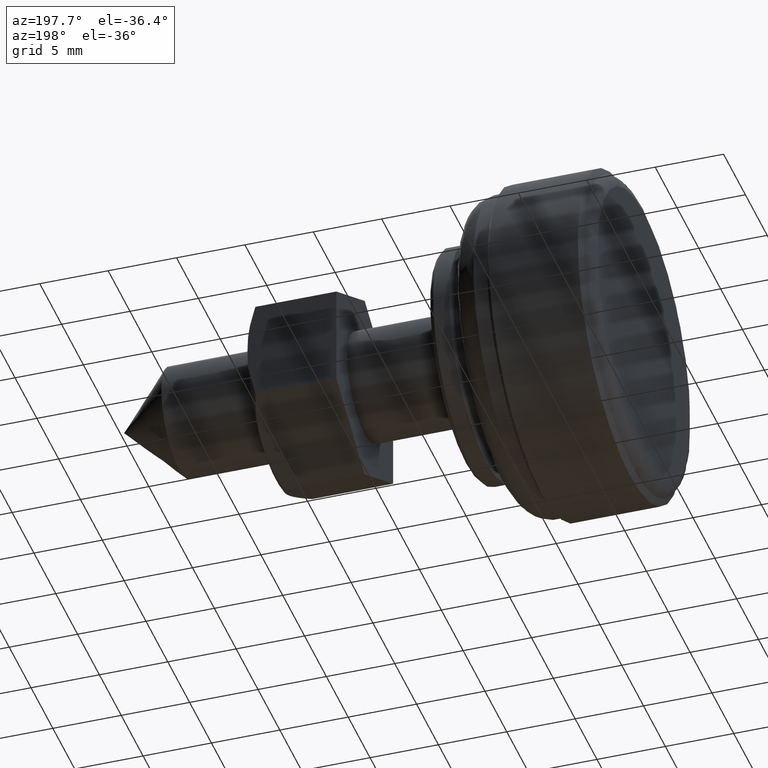
[diagram: clean part render]
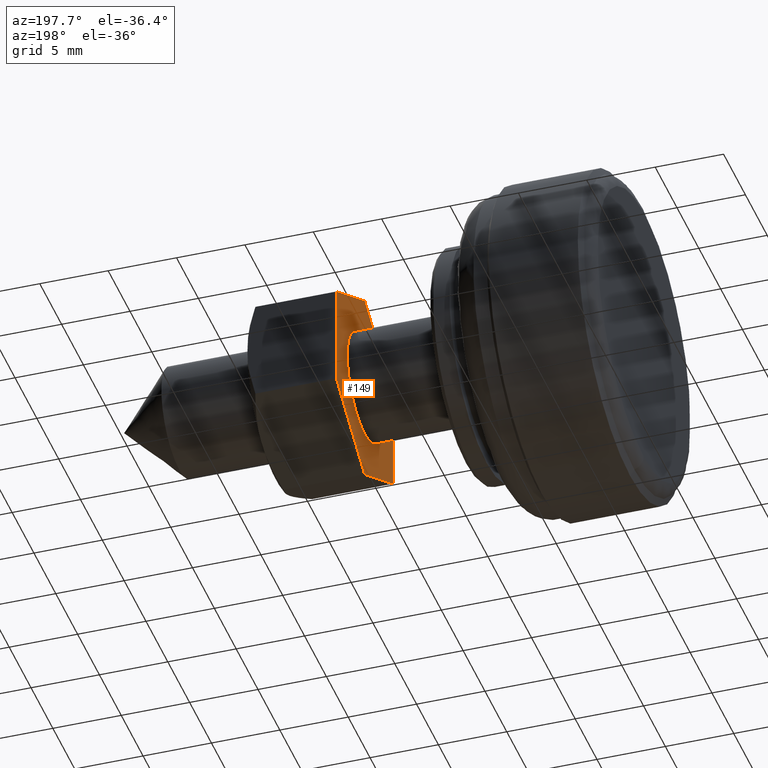
[diagram: same view with one face highlighted and labeled with its STEP entity id]
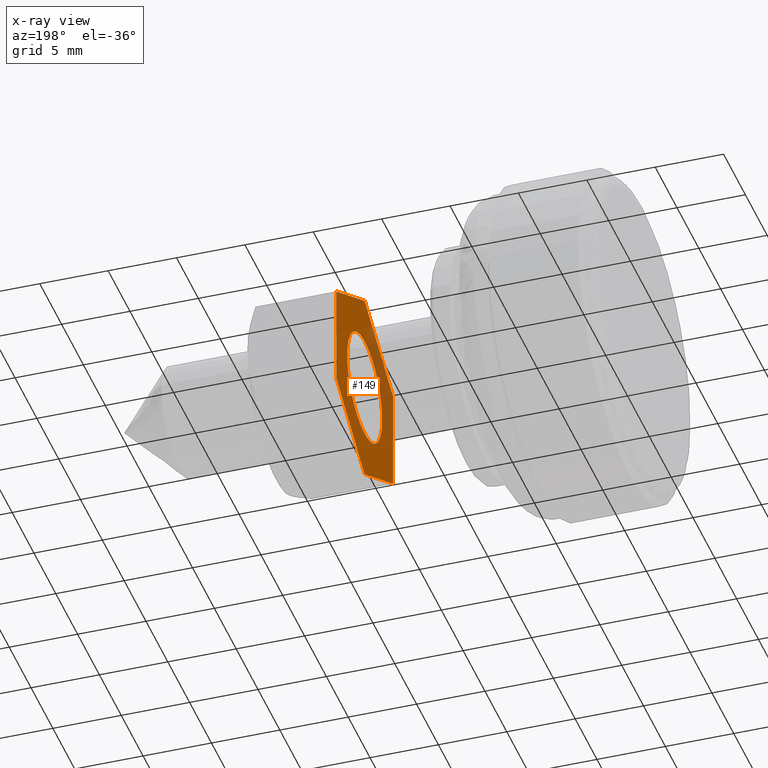
[diagram: x-ray of the same camera — body ghosted, the highlighted face saturated]
A machine part, auxiliary view. The second image highlights one B-rep face of the part: STEP entity #149.
The next image is the same camera in x-ray: the body ghosted, the highlighted face saturated — about 23% of this face is hidden behind the body in this view.
In plain terms, the highlighted planar face has unit normal (1, 0, 0).
Its self-contained STEP definition (entity closure, byte-faithful):
#149=ADVANCED_FACE('',(#529,#530),#528,.F.);
#528=PLANE('',#911);
#529=FACE_OUTER_BOUND('',#912,.T.);
#530=FACE_BOUND('',#913,.T.);
#908=CARTESIAN_POINT('',(-9.00666419936E+00,7.80000000000E+00,0.00000000000E+00));
#909=DIRECTION('',(0.00000000000E+00,0.00000000000E+00,1.00000000000E+00));
#910=DIRECTION('',(0.00000000000E+00,-1.00000000000E+00,0.00000000000E+00));
#911=AXIS2_PLACEMENT_3D('',#908,#909,#910);
#912=EDGE_LOOP('',(#1089,#1090,#1091,#1092,#1093,#1094));
#913=EDGE_LOOP('',(#1095,#1096,#1097));
#1089=ORIENTED_EDGE('',*,*,#1183,.F.);
#1090=ORIENTED_EDGE('',*,*,#1185,.F.);
#1091=ORIENTED_EDGE('',*,*,#1187,.F.);
#1092=ORIENTED_EDGE('',*,*,#1190,.F.);
#1093=ORIENTED_EDGE('',*,*,#1194,.F.);
#1094=ORIENTED_EDGE('',*,*,#1196,.F.);
#1095=ORIENTED_EDGE('',*,*,#1197,.T.);
#1096=ORIENTED_EDGE('',*,*,#1198,.T.);
#1097=ORIENTED_EDGE('',*,*,#1199,.T.);
#1183=EDGE_CURVE('',#1653,#1646,#1660,.T.);
#1185=EDGE_CURVE('',#1666,#1653,#1673,.T.);
#1187=EDGE_CURVE('',#1679,#1666,#1686,.T.);
#1190=EDGE_CURVE('',#1699,#1679,#1706,.T.);
#1194=EDGE_CURVE('',#1725,#1699,#1732,.T.);
#1196=EDGE_CURVE('',#1646,#1725,#1744,.T.);
#1197=EDGE_CURVE('',#1750,#1751,#1752,.T.);
#1198=EDGE_CURVE('',#1751,#1758,#1759,.T.);
#1199=EDGE_CURVE('',#1758,#1750,#1765,.T.);
#1646=VERTEX_POINT('',#2078);
#1653=VERTEX_POINT('',#2082);
#1660=LINE('',#2086,#2087);
#1666=VERTEX_POINT('',#2089);
#1673=LINE('',#2093,#2094);
#1679=VERTEX_POINT('',#2096);
#1686=LINE('',#2100,#2101);
#1699=VERTEX_POINT('',#2110);
#1706=LINE('',#2114,#2115);
#1725=VERTEX_POINT('',#2132);
#1732=LINE('',#2136,#2137);
#1744=LINE('',#2145,#2146);
#1750=VERTEX_POINT('',#2148);
#1751=VERTEX_POINT('',#2149);
#1752=CIRCLE('',#2153,4.00000000000E+00);
#1758=VERTEX_POINT('',#2154);
#1759=CIRCLE('',#2158,4.00000000000E+00);
#1765=CIRCLE('',#2162,4.00000000000E+00);
#2078=CARTESIAN_POINT('',(-3.75277674973E+00,6.50000000000E+00,0.00000000000E+00));
#2082=CARTESIAN_POINT('',(3.75277674973E+00,6.50000000000E+00,0.00000000000E+00));
#2086=CARTESIAN_POINT('',(3.75277674973E+00,6.50000000000E+00,0.00000000000E+00));
#2087=VECTOR('',#2088,7.50555349947E+00);
#2088=DIRECTION('',(-1.00000000000E+00,0.00000000000E+00,0.00000000000E+00));
#2089=CARTESIAN_POINT('',(7.50555349947E+00,-3.55271367880E-15,0.00000000000E+00));
#2093=CARTESIAN_POINT('',(7.50555349947E+00,-2.44249065418E-15,0.00000000000E+00));
#2094=VECTOR('',#2095,7.50555349947E+00);
#2095=DIRECTION('',(-5.00000000000E-01,8.66025403784E-01,0.00000000000E+00));
#2096=CARTESIAN_POINT('',(3.75277674973E+00,-6.50000000000E+00,0.00000000000E+00));
#2100=CARTESIAN_POINT('',(3.75277674973E+00,-6.50000000000E+00,0.00000000000E+00));
#2101=VECTOR('',#2102,7.50555349947E+00);
#2102=DIRECTION('',(5.00000000000E-01,8.66025403784E-01,0.00000000000E+00));
#2110=CARTESIAN_POINT('',(-3.75277674973E+00,-6.50000000000E+00,0.00000000000E+00));
#2114=CARTESIAN_POINT('',(-3.75277674973E+00,-6.50000000000E+00,0.00000000000E+00));
#2115=VECTOR('',#2116,7.50555349947E+00);
#2116=DIRECTION('',(1.00000000000E+00,-2.36672330632E-16,0.00000000000E+00));
#2132=CARTESIAN_POINT('',(-7.50555349947E+00,8.88178419700E-16,0.00000000000E+00));
#2136=CARTESIAN_POINT('',(-7.50555349947E+00,1.11022302463E-15,0.00000000000E+00));
#2137=VECTOR('',#2138,7.50555349947E+00);
#2138=DIRECTION('',(5.00000000000E-01,-8.66025403784E-01,0.00000000000E+00));
#2145=CARTESIAN_POINT('',(-3.75277674973E+00,6.50000000000E+00,0.00000000000E+00));
#2146=VECTOR('',#2147,7.50555349947E+00);
#2147=DIRECTION('',(-5.00000000000E-01,-8.66025403784E-01,0.00000000000E+00));
#2148=CARTESIAN_POINT('',(0.00000000000E+00,-4.00000000000E+00,0.00000000000E+00));
#2149=CARTESIAN_POINT('',(3.99999997846E+00,4.15123018774E-04,0.00000000000E+00));
#2150=CARTESIAN_POINT('',(0.00000000000E+00,0.00000000000E+00,0.00000000000E+00));
#2151=DIRECTION('',(0.00000000000E+00,0.00000000000E+00,1.00000000000E+00));
#2152=DIRECTION('',(-1.22460635382E-16,-1.00000000000E+00,0.00000000000E+00));
#2153=AXIS2_PLACEMENT_3D('',#2150,#2151,#2152);
#2154=CARTESIAN_POINT('',(-4.00000000000E+00,-1.59427319057E-11,0.00000000000E+00));
#2155=CARTESIAN_POINT('',(0.00000000000E+00,0.00000000000E+00,0.00000000000E+00));
#2156=DIRECTION('',(0.00000000000E+00,0.00000000000E+00,1.00000000000E+00));
#2157=DIRECTION('',(-1.22460635382E-16,-1.00000000000E+00,0.00000000000E+00));
#2158=AXIS2_PLACEMENT_3D('',#2155,#2156,#2157);
#2159=CARTESIAN_POINT('',(0.00000000000E+00,0.00000000000E+00,0.00000000000E+00));
#2160=DIRECTION('',(0.00000000000E+00,0.00000000000E+00,1.00000000000E+00));
#2161=DIRECTION('',(-1.22460635382E-16,-1.00000000000E+00,0.00000000000E+00));
#2162=AXIS2_PLACEMENT_3D('',#2159,#2160,#2161);